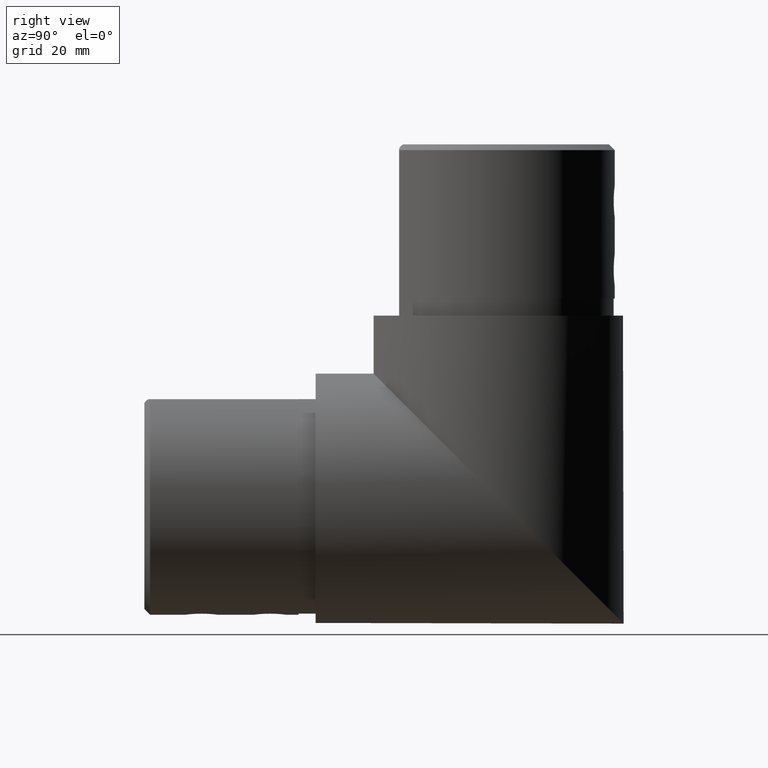
[diagram: clean part render]
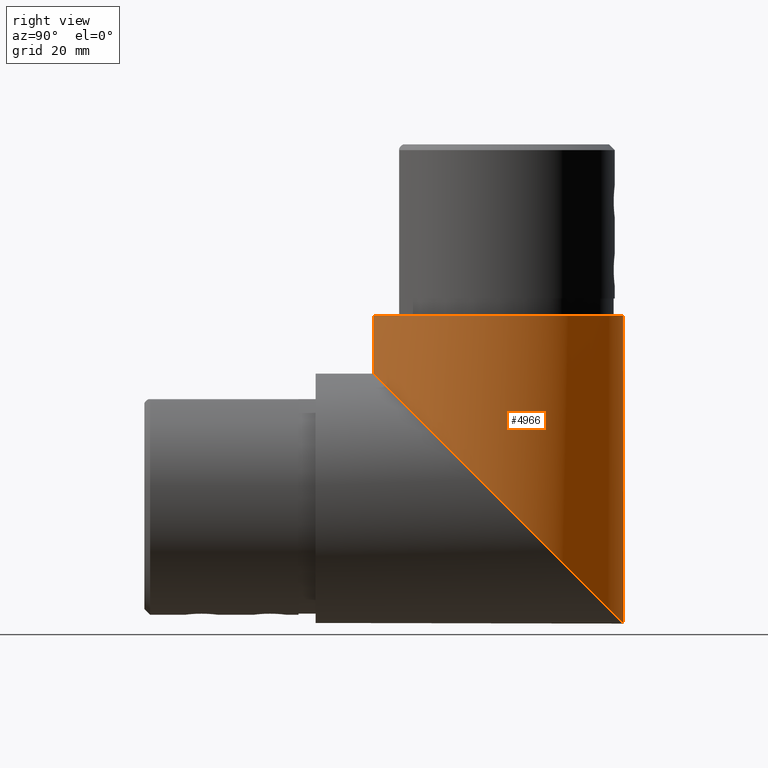
[diagram: same view with one face highlighted and labeled with its STEP entity id]
A machine part, right view. The second image highlights one B-rep face of the part: STEP entity #4966.
In plain terms, the highlighted cylindrical surface (partial cylindrical patch) has radius 24.15 mm, axis along (0, -0, 1).
Its self-contained STEP definition (entity closure, byte-faithful):
#44 = EDGE_CURVE ( 'NONE', #2973, #9716, #1476, .T. ) ;
#707 = ORIENTED_EDGE ( 'NONE', *, *, #14169, .F. ) ;
#902 = EDGE_LOOP ( 'NONE', ( #15017, #10336, #707, #15328 ) ) ;
#1476 = CIRCLE ( 'NONE', #4376, 24.14999999999999900 ) ;
#2708 = DIRECTION ( 'NONE',  ( 0.0000000000000000000, -1.000000000000000000, -1.436623996668163300E-016 ) ) ;
#2954 = CARTESIAN_POINT ( 'NONE',  ( -37.30628740265225200, 26.75341653005052900, 3.096583469949471200 ) ) ;
#2973 = VERTEX_POINT ( 'NONE', #18188 ) ;
#3020 = CARTESIAN_POINT ( 'NONE',  ( 0.0000000000000000000, 29.84999999999999800, 29.85000000000000100 ) ) ;
#3114 = CARTESIAN_POINT ( 'NONE',  ( 14.00000000000000200, 10.17203008438116600, 19.67796991561883100 ) ) ;
#4220 = LINE ( 'NONE', #14857, #23430 ) ;
#4376 = AXIS2_PLACEMENT_3D ( 'NONE', #3020, #12063, #2708 ) ;
#4648 = VECTOR ( 'NONE', #13903, 1000.000000000000000 ) ;
#4714 = CARTESIAN_POINT ( 'NONE',  ( -7.767232397938155200E-015, 54.00000000000000700, -24.15000000000000200 ) ) ;
#4966 = ADVANCED_FACE ( 'NONE', ( #10597 ), #22093, .T. ) ;
#6563 = CARTESIAN_POINT ( 'NONE',  ( -13.99999999999999800, 10.17203008438115400, 19.67796991561883500 ) ) ;
#7186 = CARTESIAN_POINT ( 'NONE',  ( 0.0000000000000000000, 29.85000000000000100, 0.0000000000000000000 ) ) ;
#7352 = DIRECTION ( 'NONE',  ( 0.0000000000000000000, -1.000000000000000000, -1.162293786249117100E-016 ) ) ;
#9716 = VERTEX_POINT ( 'NONE', #20571 ) ;
#10336 = ORIENTED_EDGE ( 'NONE', *, *, #44, .T. ) ;
#10597 = FACE_OUTER_BOUND ( 'NONE', #902, .T. ) ;
#10670 =( BOUNDED_CURVE ( )  B_SPLINE_CURVE ( 3, ( #12231, #21155, #15716, #4714, #17560, #2954, #6563 ),
 .UNSPECIFIED., .F., .T. ) 
 B_SPLINE_CURVE_WITH_KNOTS ( ( 4, 3, 4 ),
 ( 0.6183729178868663200, 3.141592653589793600, 5.664812389292720200 ),
 .UNSPECIFIED. ) 
 CURVE ( )  GEOMETRIC_REPRESENTATION_ITEM ( )  RATIONAL_B_SPLINE_CURVE ( ( 1.000000000000000000, 0.5361891820792521500, 0.5361891820792521500, 1.000000000000000000, 0.5361891820792522600, 0.5361891820792522600, 1.000000000000000000 ) ) 
 REPRESENTATION_ITEM ( '' )  );
#10983 = EDGE_CURVE ( 'NONE', #13331, #13080, #10670, .T. ) ;
#11964 = CARTESIAN_POINT ( 'NONE',  ( 14.00000000000000200, 10.17203008438116600, 19.67796991561883100 ) ) ;
#12063 = DIRECTION ( 'NONE',  ( -0.0000000000000000000, 1.162293786249117100E-016, -1.000000000000000000 ) ) ;
#12231 = CARTESIAN_POINT ( 'NONE',  ( 14.00000000000000200, 10.17203008438116600, 19.67796991561883100 ) ) ;
#12957 = LINE ( 'NONE', #11964, #4648 ) ;
#13080 = VERTEX_POINT ( 'NONE', #16941 ) ;
#13331 = VERTEX_POINT ( 'NONE', #3114 ) ;
#13903 = DIRECTION ( 'NONE',  ( 0.0000000000000000000, -1.162293786249117100E-016, 1.000000000000000000 ) ) ;
#14169 = EDGE_CURVE ( 'NONE', #13331, #9716, #12957, .T. ) ;
#14857 = CARTESIAN_POINT ( 'NONE',  ( -13.99999999999999800, 10.17203008438115400, 19.67796991561883500 ) ) ;
#15017 = ORIENTED_EDGE ( 'NONE', *, *, #21858, .T. ) ;
#15328 = ORIENTED_EDGE ( 'NONE', *, *, #10983, .T. ) ;
#15716 = CARTESIAN_POINT ( 'NONE',  ( 28.60289161877964000, 54.00000000000001400, -24.15000000000001300 ) ) ;
#16941 = CARTESIAN_POINT ( 'NONE',  ( -13.99999999999999800, 10.17203008438115400, 19.67796991561883500 ) ) ;
#17560 = CARTESIAN_POINT ( 'NONE',  ( -28.60289161877964400, 54.00000000000000000, -24.14999999999998800 ) ) ;
#18188 = CARTESIAN_POINT ( 'NONE',  ( -13.99999999999999100, 10.17203008438115800, 29.84999999999999800 ) ) ;
#20259 = DIRECTION ( 'NONE',  ( 0.0000000000000000000, -1.162293786249117100E-016, 1.000000000000000000 ) ) ;
#20571 = CARTESIAN_POINT ( 'NONE',  ( 14.00000000000000200, 10.17203008438116600, 29.84999999999999800 ) ) ;
#21155 = CARTESIAN_POINT ( 'NONE',  ( 37.30628740265225900, 26.75341653005054000, 3.096583469949461400 ) ) ;
#21603 = AXIS2_PLACEMENT_3D ( 'NONE', #7186, #20259, #7352 ) ;
#21858 = EDGE_CURVE ( 'NONE', #13080, #2973, #4220, .T. ) ;
#22093 = CYLINDRICAL_SURFACE ( 'NONE', #21603, 24.14999999999999900 ) ;
#22232 = DIRECTION ( 'NONE',  ( 0.0000000000000000000, -1.162293786249117100E-016, 1.000000000000000000 ) ) ;
#23430 = VECTOR ( 'NONE', #22232, 1000.000000000000000 ) ;